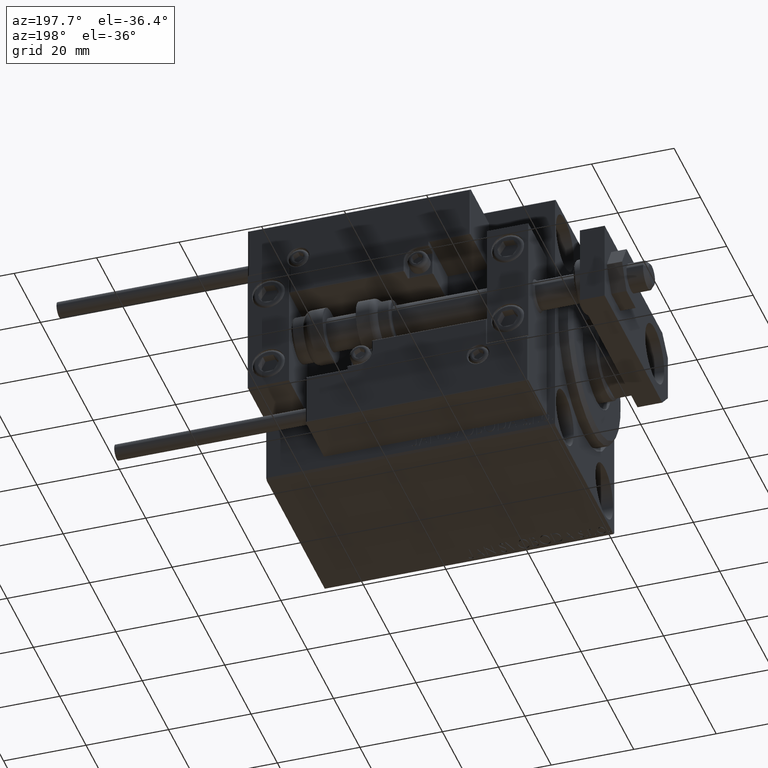
[diagram: clean part render]
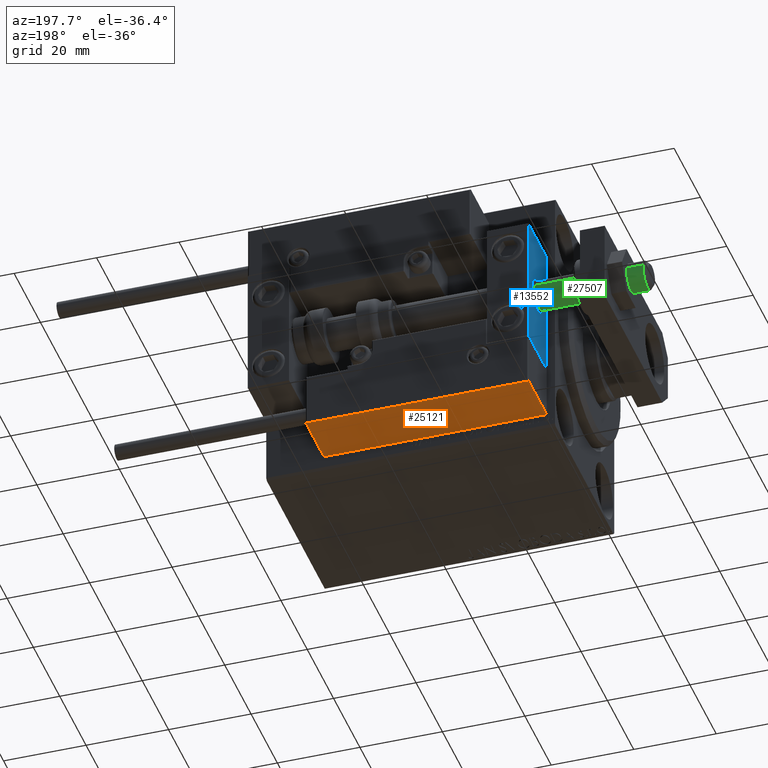
[diagram: same view with three faces highlighted in distinct colors, each labeled with its STEP entity id]
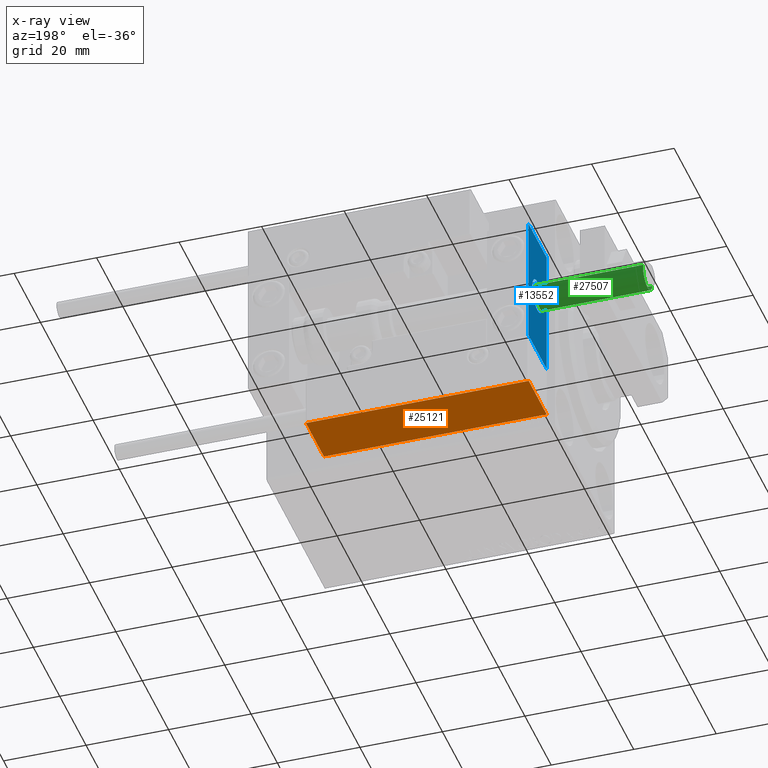
[diagram: x-ray of the same camera — body ghosted, the three highlighted faces saturated]
A machine part, auxiliary view with three faces highlighted in distinct colors.
The next image is the same camera in x-ray (body ghosted, the three faces saturated) — at least one of them is partly hidden behind the body in this view.
Their STEP definitions:

[orange] entity #25121 — the highlighted planar face has unit normal (0, 0, 1).
#2925 = DIRECTION ( 'NONE',  ( -0.000000000000000000, -0.000000000000000000, -1.000000000000000000 ) ) ;
#3047 = VECTOR ( 'NONE', #9071, 1000.000000000000000 ) ;
#3372 = FACE_OUTER_BOUND ( 'NONE', #47616, .T. ) ;
#5404 = EDGE_CURVE ( 'NONE', #41206, #28423, #45429, .T. ) ;
#6742 = LINE ( 'NONE', #9808, #38865 ) ;
#6931 = CARTESIAN_POINT ( 'NONE',  ( 27.00000000000006395, 20.00000000000001776, 14.00000000000000000 ) ) ;
#8221 = ORIENTED_EDGE ( 'NONE', *, *, #5404, .T. ) ;
#8554 = LINE ( 'NONE', #20205, #3047 ) ;
#9071 = DIRECTION ( 'NONE',  ( 1.000000000000000000, -6.424901762877063495E-17, -0.000000000000000000 ) ) ;
#9808 = CARTESIAN_POINT ( 'NONE',  ( 27.00000000000006395, 20.00000000000001776, 14.00000000000000000 ) ) ;
#11464 = VERTEX_POINT ( 'NONE', #25034 ) ;
#15071 = DIRECTION ( 'NONE',  ( -0.000000000000000000, -0.000000000000000000, -1.000000000000000000 ) ) ;
#18831 = PLANE ( 'NONE',  #38500 ) ;
#19121 = CARTESIAN_POINT ( 'NONE',  ( -26.99999999999993605, 20.00000000000002132, 14.00000000000000000 ) ) ;
#20205 = CARTESIAN_POINT ( 'NONE',  ( 27.00000000000006395, 20.00000000000001776, 13.70000000000000107 ) ) ;
#21497 = VERTEX_POINT ( 'NONE', #24501 ) ;
#22383 = DIRECTION ( 'NONE',  ( 1.000000000000000000, -6.424901762877063495E-17, 0.000000000000000000 ) ) ;
#24501 = CARTESIAN_POINT ( 'NONE',  ( 27.00000000000006395, 20.00000000000001776, 13.70000000000000107 ) ) ;
#25034 = CARTESIAN_POINT ( 'NONE',  ( -26.99999999999993605, 20.00000000000002132, 13.70000000000000107 ) ) ;
#25121 = ADVANCED_FACE ( 'NONE', ( #3372 ), #18831, .F. ) ;
#25906 = DIRECTION ( 'NONE',  ( -1.000000000000000000, 6.424901762877062263E-17, 0.000000000000000000 ) ) ;
#26888 = CARTESIAN_POINT ( 'NONE',  ( 27.00000000000006395, 20.00000000000001776, 0.000000000000000000 ) ) ;
#27675 = EDGE_CURVE ( 'NONE', #11464, #28423, #34836, .T. ) ;
#28423 = VERTEX_POINT ( 'NONE', #30660 ) ;
#30660 = CARTESIAN_POINT ( 'NONE',  ( -26.99999999999993605, 20.00000000000002132, 0.000000000000000000 ) ) ;
#32120 = CARTESIAN_POINT ( 'NONE',  ( 27.00000000000006395, 20.00000000000001776, 0.000000000000000000 ) ) ;
#34836 = LINE ( 'NONE', #19121, #43475 ) ;
#36795 = ORIENTED_EDGE ( 'NONE', *, *, #39561, .T. ) ;
#36998 = VECTOR ( 'NONE', #25906, 1000.000000000000000 ) ;
#38500 = AXIS2_PLACEMENT_3D ( 'NONE', #6931, #45954, #22383 ) ;
#38865 = VECTOR ( 'NONE', #2925, 1000.000000000000000 ) ;
#39561 = EDGE_CURVE ( 'NONE', #21497, #41206, #6742, .T. ) ;
#41206 = VERTEX_POINT ( 'NONE', #32120 ) ;
#43475 = VECTOR ( 'NONE', #15071, 1000.000000000000000 ) ;
#45429 = LINE ( 'NONE', #26888, #36998 ) ;
#45954 = DIRECTION ( 'NONE',  ( -6.424901762877063495E-17, -1.000000000000000000, 0.000000000000000000 ) ) ;
#47616 = EDGE_LOOP ( 'NONE', ( #49314, #49325, #36795, #8221 ) ) ;
#48390 = EDGE_CURVE ( 'NONE', #11464, #21497, #8554, .T. ) ;
#49314 = ORIENTED_EDGE ( 'NONE', *, *, #27675, .F. ) ;
#49325 = ORIENTED_EDGE ( 'NONE', *, *, #48390, .T. ) ;

[blue] entity #13552 — the highlighted planar face has unit normal (1, 0, -0).
#135 = EDGE_CURVE ( 'NONE', #26180, #27107, #13330, .T. ) ;
#1995 = CIRCLE ( 'NONE', #23054, 4.000000000000000000 ) ;
#2465 = VERTEX_POINT ( 'NONE', #17310 ) ;
#3252 = DIRECTION ( 'NONE',  ( -1.000000000000000000, 0.000000000000000000, 0.000000000000000000 ) ) ;
#4503 = PLANE ( 'NONE',  #34025 ) ;
#4784 = CARTESIAN_POINT ( 'NONE',  ( 10.00000000000000000, -7.000000000000000000, 15.99999999999999289 ) ) ;
#5024 = EDGE_LOOP ( 'NONE', ( #5519, #23728 ) ) ;
#5519 = ORIENTED_EDGE ( 'NONE', *, *, #32298, .T. ) ;
#7034 = ORIENTED_EDGE ( 'NONE', *, *, #32324, .F. ) ;
#7250 = VERTEX_POINT ( 'NONE', #49248 ) ;
#8414 = CARTESIAN_POINT ( 'NONE',  ( 10.00000000000000000, 7.000000000000000000, 15.99999999999999289 ) ) ;
#8701 = VECTOR ( 'NONE', #28613, 1000.000000000000000 ) ;
#10335 = CIRCLE ( 'NONE', #14388, 4.000000000000000000 ) ;
#12388 = CARTESIAN_POINT ( 'NONE',  ( 10.00000000000000000, 7.000000000000000000, 15.99999999999999289 ) ) ;
#13330 = LINE ( 'NONE', #36636, #45010 ) ;
#13552 = ADVANCED_FACE ( 'NONE', ( #46604, #15436 ), #4503, .F. ) ;
#14388 = AXIS2_PLACEMENT_3D ( 'NONE', #30391, #45868, #42063 ) ;
#15436 = FACE_OUTER_BOUND ( 'NONE', #41066, .T. ) ;
#16160 = EDGE_CURVE ( 'NONE', #7250, #39485, #46685, .T. ) ;
#17310 = CARTESIAN_POINT ( 'NONE',  ( 10.00000000000000000, 4.898587196589412829E-16, -4.000000000000000000 ) ) ;
#18919 = ORIENTED_EDGE ( 'NONE', *, *, #26526, .T. ) ;
#19361 = VERTEX_POINT ( 'NONE', #47420 ) ;
#19731 = DIRECTION ( 'NONE',  ( -0.000000000000000000, 0.000000000000000000, 1.000000000000000000 ) ) ;
#20255 = DIRECTION ( 'NONE',  ( 0.000000000000000000, 0.000000000000000000, -1.000000000000000000 ) ) ;
#20782 = VECTOR ( 'NONE', #20255, 1000.000000000000000 ) ;
#21186 = DIRECTION ( 'NONE',  ( 0.000000000000000000, -1.000000000000000000, 0.000000000000000000 ) ) ;
#22636 = EDGE_CURVE ( 'NONE', #2465, #19361, #1995, .T. ) ;
#23054 = AXIS2_PLACEMENT_3D ( 'NONE', #37971, #3252, #23246 ) ;
#23246 = DIRECTION ( 'NONE',  ( 0.000000000000000000, 0.000000000000000000, 1.000000000000000000 ) ) ;
#23728 = ORIENTED_EDGE ( 'NONE', *, *, #22636, .T. ) ;
#23783 = CARTESIAN_POINT ( 'NONE',  ( 10.00000000000000000, 0.000000000000000000, 0.000000000000000000 ) ) ;
#26180 = VERTEX_POINT ( 'NONE', #45961 ) ;
#26526 = EDGE_CURVE ( 'NONE', #39485, #27107, #27102, .T. ) ;
#27102 = LINE ( 'NONE', #4784, #20782 ) ;
#27107 = VERTEX_POINT ( 'NONE', #48384 ) ;
#28613 = DIRECTION ( 'NONE',  ( 0.000000000000000000, 0.000000000000000000, -1.000000000000000000 ) ) ;
#30391 = CARTESIAN_POINT ( 'NONE',  ( 10.00000000000000000, 0.000000000000000000, 0.000000000000000000 ) ) ;
#31660 = LINE ( 'NONE', #12388, #8701 ) ;
#32298 = EDGE_CURVE ( 'NONE', #19361, #2465, #10335, .T. ) ;
#32324 = EDGE_CURVE ( 'NONE', #7250, #26180, #31660, .T. ) ;
#34025 = AXIS2_PLACEMENT_3D ( 'NONE', #23783, #46862, #19731 ) ;
#35604 = VECTOR ( 'NONE', #45938, 1000.000000000000000 ) ;
#36636 = CARTESIAN_POINT ( 'NONE',  ( 10.00000000000000000, 7.000000000000000000, -16.00000000000000711 ) ) ;
#37971 = CARTESIAN_POINT ( 'NONE',  ( 10.00000000000000000, 0.000000000000000000, 0.000000000000000000 ) ) ;
#39485 = VERTEX_POINT ( 'NONE', #44273 ) ;
#41066 = EDGE_LOOP ( 'NONE', ( #18919, #49789, #7034, #46854 ) ) ;
#42063 = DIRECTION ( 'NONE',  ( 0.000000000000000000, 0.000000000000000000, 1.000000000000000000 ) ) ;
#44273 = CARTESIAN_POINT ( 'NONE',  ( 10.00000000000000000, -7.000000000000000000, 15.99999999999999289 ) ) ;
#45010 = VECTOR ( 'NONE', #21186, 1000.000000000000000 ) ;
#45868 = DIRECTION ( 'NONE',  ( -1.000000000000000000, 0.000000000000000000, 0.000000000000000000 ) ) ;
#45938 = DIRECTION ( 'NONE',  ( 0.000000000000000000, -1.000000000000000000, 0.000000000000000000 ) ) ;
#45961 = CARTESIAN_POINT ( 'NONE',  ( 10.00000000000000000, 7.000000000000000000, -16.00000000000000711 ) ) ;
#46604 = FACE_BOUND ( 'NONE', #5024, .T. ) ;
#46685 = LINE ( 'NONE', #8414, #35604 ) ;
#46854 = ORIENTED_EDGE ( 'NONE', *, *, #16160, .T. ) ;
#46862 = DIRECTION ( 'NONE',  ( -1.000000000000000000, 0.000000000000000000, -0.000000000000000000 ) ) ;
#47420 = CARTESIAN_POINT ( 'NONE',  ( 10.00000000000000000, 0.000000000000000000, 4.000000000000000000 ) ) ;
#48384 = CARTESIAN_POINT ( 'NONE',  ( 10.00000000000000000, -7.000000000000000000, -16.00000000000000711 ) ) ;
#49248 = CARTESIAN_POINT ( 'NONE',  ( 10.00000000000000000, 7.000000000000000000, 15.99999999999999289 ) ) ;
#49789 = ORIENTED_EDGE ( 'NONE', *, *, #135, .F. ) ;

[green] entity #27507 — the highlighted cylindrical surface (edge-blend (fillet) strip) has radius 3.5 mm, axis along (1, -0, -0).
#17 = EDGE_CURVE ( 'NONE', #38494, #29526, #16657, .T. ) ;
#2630 = CARTESIAN_POINT ( 'NONE',  ( 3.500000000000000000, 0.000000000000000000, -25.69999999999999929 ) ) ;
#2900 = AXIS2_PLACEMENT_3D ( 'NONE', #48578, #22190, #49075 ) ;
#4831 = CARTESIAN_POINT ( 'NONE',  ( -3.500000000000000000, 4.286263797015735609E-16, -25.69999999999999929 ) ) ;
#6057 = CARTESIAN_POINT ( 'NONE',  ( 3.500000000000000000, 0.000000000000000000, -24.70000000000005969 ) ) ;
#6078 = CARTESIAN_POINT ( 'NONE',  ( 0.000000000000000000, 0.000000000000000000, 1.500000000000025535 ) ) ;
#6735 = FACE_OUTER_BOUND ( 'NONE', #49134, .T. ) ;
#9703 = VERTEX_POINT ( 'NONE', #10853 ) ;
#10853 = CARTESIAN_POINT ( 'NONE',  ( -3.500000000000000000, 4.286263797015735609E-16, 1.500000000000025535 ) ) ;
#11051 = CARTESIAN_POINT ( 'NONE',  ( 3.500000000000000000, 0.000000000000000000, 1.500000000000025535 ) ) ;
#11067 = ORIENTED_EDGE ( 'NONE', *, *, #19358, .F. ) ;
#12448 = LINE ( 'NONE', #4831, #40578 ) ;
#13533 = EDGE_CURVE ( 'NONE', #30385, #9703, #36413, .T. ) ;
#15064 = AXIS2_PLACEMENT_3D ( 'NONE', #19427, #42744, #16620 ) ;
#16620 = DIRECTION ( 'NONE',  ( -1.000000000000000000, 0.000000000000000000, 0.000000000000000000 ) ) ;
#16657 = CIRCLE ( 'NONE', #15064, 3.500000000000000000 ) ;
#17845 = DIRECTION ( 'NONE',  ( -0.000000000000000000, -0.000000000000000000, 1.000000000000000000 ) ) ;
#17895 = CYLINDRICAL_SURFACE ( 'NONE', #2900, 3.500000000000000000 ) ;
#19358 = EDGE_CURVE ( 'NONE', #38494, #9703, #12448, .T. ) ;
#19427 = CARTESIAN_POINT ( 'NONE',  ( 0.000000000000000000, 0.000000000000000000, -24.70000000000005969 ) ) ;
#20168 = ORIENTED_EDGE ( 'NONE', *, *, #17, .T. ) ;
#21051 = DIRECTION ( 'NONE',  ( -0.000000000000000000, -0.000000000000000000, 1.000000000000000000 ) ) ;
#22054 = DIRECTION ( 'NONE',  ( 0.000000000000000000, 0.000000000000000000, -1.000000000000000000 ) ) ;
#22190 = DIRECTION ( 'NONE',  ( -0.000000000000000000, -0.000000000000000000, 1.000000000000000000 ) ) ;
#26760 = AXIS2_PLACEMENT_3D ( 'NONE', #6078, #22054, #44876 ) ;
#27507 = ADVANCED_FACE ( 'NONE', ( #6735 ), #17895, .T. ) ;
#29526 = VERTEX_POINT ( 'NONE', #6057 ) ;
#30385 = VERTEX_POINT ( 'NONE', #11051 ) ;
#36413 = CIRCLE ( 'NONE', #26760, 3.500000000000000000 ) ;
#38494 = VERTEX_POINT ( 'NONE', #40707 ) ;
#40578 = VECTOR ( 'NONE', #21051, 1000.000000000000000 ) ;
#40707 = CARTESIAN_POINT ( 'NONE',  ( -3.500000000000000000, 4.286263797015735609E-16, -24.70000000000005969 ) ) ;
#41998 = ORIENTED_EDGE ( 'NONE', *, *, #48335, .T. ) ;
#42744 = DIRECTION ( 'NONE',  ( 0.000000000000000000, 0.000000000000000000, 1.000000000000000000 ) ) ;
#43546 = VECTOR ( 'NONE', #17845, 1000.000000000000000 ) ;
#43712 = ORIENTED_EDGE ( 'NONE', *, *, #13533, .T. ) ;
#44876 = DIRECTION ( 'NONE',  ( 1.000000000000000000, 0.000000000000000000, 0.000000000000000000 ) ) ;
#48335 = EDGE_CURVE ( 'NONE', #29526, #30385, #48786, .T. ) ;
#48578 = CARTESIAN_POINT ( 'NONE',  ( 0.000000000000000000, 0.000000000000000000, -25.69999999999999929 ) ) ;
#48786 = LINE ( 'NONE', #2630, #43546 ) ;
#49075 = DIRECTION ( 'NONE',  ( 1.000000000000000000, 0.000000000000000000, 0.000000000000000000 ) ) ;
#49134 = EDGE_LOOP ( 'NONE', ( #11067, #20168, #41998, #43712 ) ) ;